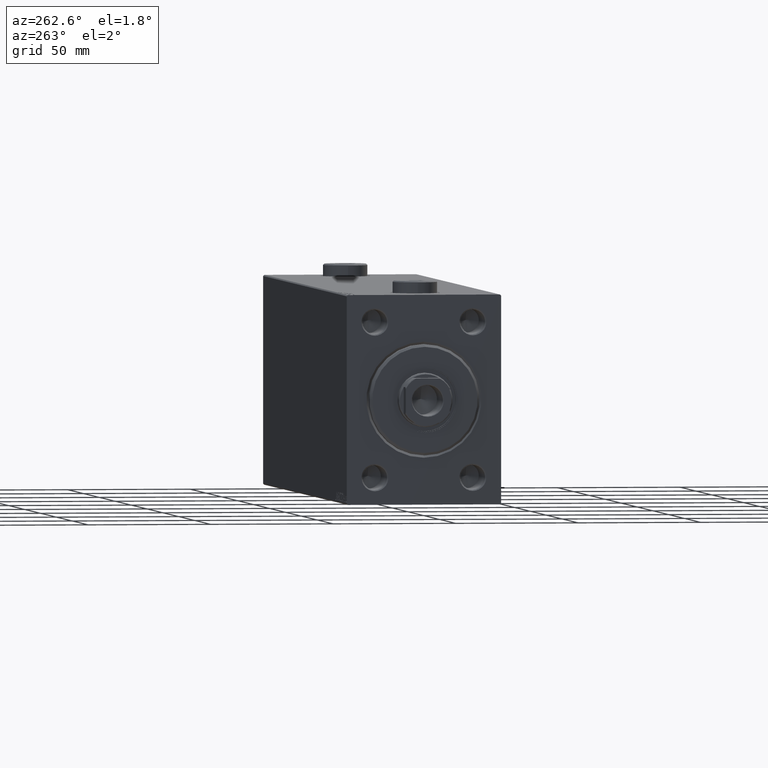
[diagram: clean part render]
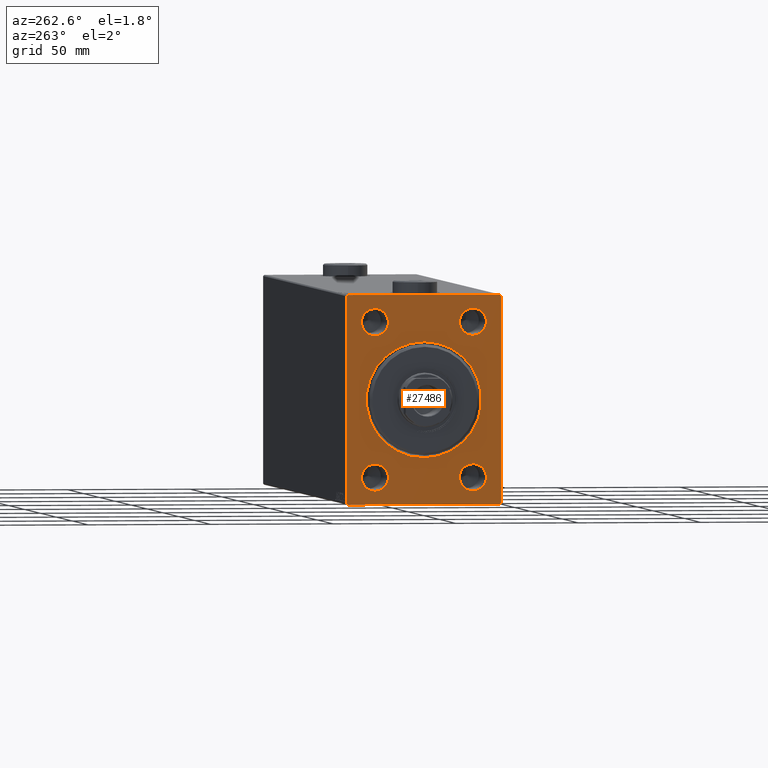
[diagram: same view with one face highlighted and labeled with its STEP entity id]
A machine part, auxiliary view. The second image highlights one B-rep face of the part: STEP entity #27486.
In plain terms, the highlighted planar face has unit normal (1, 0, 0).
Its self-contained STEP definition (entity closure, byte-faithful):
#648 = EDGE_CURVE ( 'NONE', #2320, #26723, #38391, .T. ) ;
#929 = CARTESIAN_POINT ( 'NONE',  ( 0.000000000000000000, -30.99999999999994316, 42.49999999999998579 ) ) ;
#1186 = CARTESIAN_POINT ( 'NONE',  ( 0.000000000000000000, -31.50000000000000000, 41.99999999999990763 ) ) ;
#1431 = VERTEX_POINT ( 'NONE', #42584 ) ;
#1801 = EDGE_CURVE ( 'NONE', #34371, #3617, #2379, .T. ) ;
#2040 = AXIS2_PLACEMENT_3D ( 'NONE', #24608, #38646, #7094 ) ;
#2047 = ORIENTED_EDGE ( 'NONE', *, *, #19656, .F. ) ;
#2219 = EDGE_CURVE ( 'NONE', #17587, #16890, #34788, .T. ) ;
#2229 = DIRECTION ( 'NONE',  ( 1.000000000000000000, 0.000000000000000000, 0.000000000000000000 ) ) ;
#2320 = VERTEX_POINT ( 'NONE', #10133 ) ;
#2379 = CIRCLE ( 'NONE', #35481, 5.499999999999976907 ) ;
#2711 = DIRECTION ( 'NONE',  ( 0.000000000000000000, 0.000000000000000000, -1.000000000000000000 ) ) ;
#2821 = FACE_BOUND ( 'NONE', #23811, .T. ) ;
#2835 = LINE ( 'NONE', #16897, #22078 ) ;
#2920 = CARTESIAN_POINT ( 'NONE',  ( 0.000000000000000000, 19.99999999999999645, -31.50000000000000000 ) ) ;
#3065 = ORIENTED_EDGE ( 'NONE', *, *, #1801, .T. ) ;
#3284 = CIRCLE ( 'NONE', #36382, 23.50000000000004619 ) ;
#3617 = VERTEX_POINT ( 'NONE', #29626 ) ;
#3770 = DIRECTION ( 'NONE',  ( 0.000000000000000000, -1.632680918566406547E-16, 1.000000000000000000 ) ) ;
#4809 = EDGE_LOOP ( 'NONE', ( #32560, #27031 ) ) ;
#5564 = EDGE_CURVE ( 'NONE', #13637, #32768, #37785, .T. ) ;
#5765 = ORIENTED_EDGE ( 'NONE', *, *, #22519, .T. ) ;
#5835 = CARTESIAN_POINT ( 'NONE',  ( 0.000000000000000000, 19.99999999999999645, -26.00000000000002132 ) ) ;
#6058 = CARTESIAN_POINT ( 'NONE',  ( 0.000000000000000000, 0.000000000000000000, 0.000000000000000000 ) ) ;
#6133 = LINE ( 'NONE', #37232, #7347 ) ;
#6438 = DIRECTION ( 'NONE',  ( 1.000000000000000000, 0.000000000000000000, 0.000000000000000000 ) ) ;
#6536 = CARTESIAN_POINT ( 'NONE',  ( 0.000000000000000000, -31.50000000000000000, -41.99999999999997158 ) ) ;
#6665 = VERTEX_POINT ( 'NONE', #17249 ) ;
#6967 = DIRECTION ( 'NONE',  ( 0.000000000000000000, 0.000000000000000000, -1.000000000000000000 ) ) ;
#7094 = DIRECTION ( 'NONE',  ( 0.000000000000000000, 0.000000000000000000, -1.000000000000000000 ) ) ;
#7347 = VECTOR ( 'NONE', #44386, 1000.000000000000000 ) ;
#7390 = EDGE_CURVE ( 'NONE', #6665, #26453, #3284, .T. ) ;
#8122 = CARTESIAN_POINT ( 'NONE',  ( 0.000000000000000000, 30.99999999999998579, -42.50000000000000711 ) ) ;
#8381 = ORIENTED_EDGE ( 'NONE', *, *, #30700, .T. ) ;
#8404 = AXIS2_PLACEMENT_3D ( 'NONE', #30627, #6438, #38226 ) ;
#8878 = EDGE_CURVE ( 'NONE', #13487, #8931, #44778, .T. ) ;
#8931 = VERTEX_POINT ( 'NONE', #6536 ) ;
#8977 = VECTOR ( 'NONE', #34705, 1000.000000000000000 ) ;
#9001 = AXIS2_PLACEMENT_3D ( 'NONE', #17718, #24641, #13575 ) ;
#9233 = VECTOR ( 'NONE', #2711, 1000.000000000000000 ) ;
#9287 = FACE_BOUND ( 'NONE', #20520, .T. ) ;
#9901 = DIRECTION ( 'NONE',  ( 0.000000000000000000, 0.000000000000000000, -1.000000000000000000 ) ) ;
#10128 = AXIS2_PLACEMENT_3D ( 'NONE', #2920, #2229, #16752 ) ;
#10133 = CARTESIAN_POINT ( 'NONE',  ( 0.000000000000000000, 30.99999999999991473, 42.49999999999999289 ) ) ;
#10317 = EDGE_CURVE ( 'NONE', #26453, #6665, #42260, .T. ) ;
#10375 = ORIENTED_EDGE ( 'NONE', *, *, #35264, .T. ) ;
#10630 = EDGE_CURVE ( 'NONE', #13637, #1431, #17615, .T. ) ;
#10890 = EDGE_LOOP ( 'NONE', ( #3065, #33716 ) ) ;
#11088 = ORIENTED_EDGE ( 'NONE', *, *, #39002, .T. ) ;
#11696 = AXIS2_PLACEMENT_3D ( 'NONE', #26417, #19269, #12115 ) ;
#11945 = CARTESIAN_POINT ( 'NONE',  ( 0.000000000000000000, -30.99999999999997158, -42.50000000000000711 ) ) ;
#12115 = DIRECTION ( 'NONE',  ( 0.000000000000000000, 0.000000000000000000, -1.000000000000000000 ) ) ;
#13076 = AXIS2_PLACEMENT_3D ( 'NONE', #6058, #20584, #30933 ) ;
#13487 = VERTEX_POINT ( 'NONE', #11945 ) ;
#13546 = CARTESIAN_POINT ( 'NONE',  ( 0.000000000000000000, 31.50000000000001421, -41.99999999999997868 ) ) ;
#13575 = DIRECTION ( 'NONE',  ( 0.000000000000000000, 0.000000000000000000, -1.000000000000000000 ) ) ;
#13621 = EDGE_CURVE ( 'NONE', #25175, #8931, #34272, .T. ) ;
#13637 = VERTEX_POINT ( 'NONE', #13546 ) ;
#14547 = VECTOR ( 'NONE', #45110, 1000.000000000000000 ) ;
#16010 = CIRCLE ( 'NONE', #10128, 5.499999999999976907 ) ;
#16036 = CIRCLE ( 'NONE', #2040, 5.499999999999976907 ) ;
#16427 = FACE_BOUND ( 'NONE', #39358, .T. ) ;
#16464 = VECTOR ( 'NONE', #33883, 1000.000000000000114 ) ;
#16657 = ORIENTED_EDGE ( 'NONE', *, *, #8878, .T. ) ;
#16752 = DIRECTION ( 'NONE',  ( 0.000000000000000000, 0.000000000000000000, -1.000000000000000000 ) ) ;
#16890 = VERTEX_POINT ( 'NONE', #27759 ) ;
#16897 = CARTESIAN_POINT ( 'NONE',  ( 0.000000000000000000, -31.50000000000000000, 41.99999999999990763 ) ) ;
#16912 = AXIS2_PLACEMENT_3D ( 'NONE', #26818, #18998, #40856 ) ;
#17001 = LINE ( 'NONE', #31051, #14547 ) ;
#17104 = CARTESIAN_POINT ( 'NONE',  ( 0.000000000000000000, -20.00000000000000355, 31.50000000000000000 ) ) ;
#17249 = CARTESIAN_POINT ( 'NONE',  ( 0.000000000000000000, 0.000000000000000000, 23.50000000000004619 ) ) ;
#17348 = CARTESIAN_POINT ( 'NONE',  ( 0.000000000000000000, -20.00000000000000355, -31.50000000000000000 ) ) ;
#17587 = VERTEX_POINT ( 'NONE', #19089 ) ;
#17615 = LINE ( 'NONE', #31661, #36379 ) ;
#17718 = CARTESIAN_POINT ( 'NONE',  ( 0.000000000000000000, -20.00000000000000355, 31.50000000000000000 ) ) ;
#18460 = DIRECTION ( 'NONE',  ( 0.000000000000000000, 0.000000000000000000, -1.000000000000000000 ) ) ;
#18638 = CARTESIAN_POINT ( 'NONE',  ( 0.000000000000000000, 0.000000000000000000, 0.000000000000000000 ) ) ;
#18998 = DIRECTION ( 'NONE',  ( 1.000000000000000000, 0.000000000000000000, 0.000000000000000000 ) ) ;
#19089 = CARTESIAN_POINT ( 'NONE',  ( 0.000000000000000000, -20.00000000000000355, -36.99999999999997868 ) ) ;
#19269 = DIRECTION ( 'NONE',  ( 1.000000000000000000, 0.000000000000000000, 0.000000000000000000 ) ) ;
#19656 = EDGE_CURVE ( 'NONE', #13487, #32768, #17001, .T. ) ;
#19717 = EDGE_CURVE ( 'NONE', #30789, #34842, #16036, .T. ) ;
#19971 = ORIENTED_EDGE ( 'NONE', *, *, #5564, .T. ) ;
#20520 = EDGE_LOOP ( 'NONE', ( #5765, #10375 ) ) ;
#20584 = DIRECTION ( 'NONE',  ( 1.000000000000000000, 0.000000000000000000, 0.000000000000000000 ) ) ;
#20971 = CARTESIAN_POINT ( 'NONE',  ( 0.000000000000000000, -20.00000000000000355, -31.50000000000000000 ) ) ;
#21288 = CIRCLE ( 'NONE', #11696, 5.499999999999976907 ) ;
#21941 = EDGE_LOOP ( 'NONE', ( #25855, #27427, #45318, #24574, #44917, #19971, #2047, #16657 ) ) ;
#21947 = EDGE_CURVE ( 'NONE', #25175, #26723, #2835, .T. ) ;
#21988 = ORIENTED_EDGE ( 'NONE', *, *, #19717, .T. ) ;
#22027 = CARTESIAN_POINT ( 'NONE',  ( 0.000000000000000000, 19.99999999999999645, -36.99999999999997868 ) ) ;
#22078 = VECTOR ( 'NONE', #32070, 1000.000000000000000 ) ;
#22186 = VERTEX_POINT ( 'NONE', #28966 ) ;
#22307 = EDGE_CURVE ( 'NONE', #2320, #1431, #6133, .T. ) ;
#22519 = EDGE_CURVE ( 'NONE', #31680, #22186, #36754, .T. ) ;
#22556 = DIRECTION ( 'NONE',  ( 1.000000000000000000, 0.000000000000000000, 0.000000000000000000 ) ) ;
#23805 = FACE_BOUND ( 'NONE', #10890, .T. ) ;
#23811 = EDGE_LOOP ( 'NONE', ( #8381, #21988 ) ) ;
#24158 = CARTESIAN_POINT ( 'NONE',  ( 0.000000000000000000, -31.50000000000000000, 42.49999999999998579 ) ) ;
#24574 = ORIENTED_EDGE ( 'NONE', *, *, #22307, .T. ) ;
#24608 = CARTESIAN_POINT ( 'NONE',  ( 0.000000000000000000, 19.99999999999999645, -31.50000000000000000 ) ) ;
#24641 = DIRECTION ( 'NONE',  ( 1.000000000000000000, 0.000000000000000000, 0.000000000000000000 ) ) ;
#25175 = VERTEX_POINT ( 'NONE', #1186 ) ;
#25778 = DIRECTION ( 'NONE',  ( 0.000000000000000000, 0.000000000000000000, -1.000000000000000000 ) ) ;
#25855 = ORIENTED_EDGE ( 'NONE', *, *, #13621, .F. ) ;
#26417 = CARTESIAN_POINT ( 'NONE',  ( 0.000000000000000000, 19.99999999999999645, 31.50000000000000000 ) ) ;
#26453 = VERTEX_POINT ( 'NONE', #29785 ) ;
#26723 = VERTEX_POINT ( 'NONE', #929 ) ;
#26818 = CARTESIAN_POINT ( 'NONE',  ( 0.000000000000000000, 19.99999999999999645, 31.50000000000000000 ) ) ;
#27031 = ORIENTED_EDGE ( 'NONE', *, *, #10317, .T. ) ;
#27271 = DIRECTION ( 'NONE',  ( -0.000000000000000000, -0.7071067811865426878, 0.7071067811865524577 ) ) ;
#27427 = ORIENTED_EDGE ( 'NONE', *, *, #21947, .T. ) ;
#27486 = ADVANCED_FACE ( 'NONE', ( #31394, #16427, #23805, #9287, #2821, #34843 ), #44990, .F. ) ;
#27759 = CARTESIAN_POINT ( 'NONE',  ( 0.000000000000000000, -20.00000000000000355, -26.00000000000002132 ) ) ;
#27826 = CARTESIAN_POINT ( 'NONE',  ( 0.000000000000000000, -20.00000000000000355, 36.99999999999997868 ) ) ;
#28373 = DIRECTION ( 'NONE',  ( 1.000000000000000000, 0.000000000000000000, 0.000000000000000000 ) ) ;
#28966 = CARTESIAN_POINT ( 'NONE',  ( 0.000000000000000000, 19.99999999999999645, 26.00000000000002132 ) ) ;
#29626 = CARTESIAN_POINT ( 'NONE',  ( 0.000000000000000000, -20.00000000000000355, 26.00000000000002132 ) ) ;
#29785 = CARTESIAN_POINT ( 'NONE',  ( 0.000000000000000000, 2.877919977996285448E-15, -23.50000000000004619 ) ) ;
#30181 = AXIS2_PLACEMENT_3D ( 'NONE', #17348, #31398, #18460 ) ;
#30560 = CARTESIAN_POINT ( 'NONE',  ( 0.000000000000000000, 31.50000000000000000, 42.49999999999999289 ) ) ;
#30627 = CARTESIAN_POINT ( 'NONE',  ( 0.000000000000000000, 0.000000000000000000, 0.000000000000000000 ) ) ;
#30700 = EDGE_CURVE ( 'NONE', #34842, #30789, #16010, .T. ) ;
#30789 = VERTEX_POINT ( 'NONE', #22027 ) ;
#30933 = DIRECTION ( 'NONE',  ( 0.000000000000000000, 0.000000000000000000, -1.000000000000000000 ) ) ;
#30955 = CARTESIAN_POINT ( 'NONE',  ( 0.000000000000000000, -30.99999999999997158, -42.50000000000000711 ) ) ;
#31051 = CARTESIAN_POINT ( 'NONE',  ( 0.000000000000000000, -31.50000000000000000, -42.50000000000000711 ) ) ;
#31394 = FACE_BOUND ( 'NONE', #4809, .T. ) ;
#31398 = DIRECTION ( 'NONE',  ( 1.000000000000000000, 0.000000000000000000, 0.000000000000000000 ) ) ;
#31661 = CARTESIAN_POINT ( 'NONE',  ( 0.000000000000000000, 31.50000000000001421, -42.50000000000000711 ) ) ;
#31680 = VERTEX_POINT ( 'NONE', #43232 ) ;
#32070 = DIRECTION ( 'NONE',  ( -0.000000000000000000, 0.7071067811865279218, 0.7071067811865671127 ) ) ;
#32560 = ORIENTED_EDGE ( 'NONE', *, *, #7390, .T. ) ;
#32768 = VERTEX_POINT ( 'NONE', #8122 ) ;
#33716 = ORIENTED_EDGE ( 'NONE', *, *, #43105, .T. ) ;
#33883 = DIRECTION ( 'NONE',  ( 0.000000000000000000, -0.7071067811865474617, -0.7071067811865474617 ) ) ;
#34272 = LINE ( 'NONE', #24158, #9233 ) ;
#34337 = CARTESIAN_POINT ( 'NONE',  ( 0.000000000000000000, 31.50000000000001421, -41.99999999999997868 ) ) ;
#34371 = VERTEX_POINT ( 'NONE', #27826 ) ;
#34705 = DIRECTION ( 'NONE',  ( 0.000000000000000000, -1.000000000000000000, -1.101411730778925171E-16 ) ) ;
#34788 = CIRCLE ( 'NONE', #37742, 5.499999999999976907 ) ;
#34842 = VERTEX_POINT ( 'NONE', #5835 ) ;
#34843 = FACE_OUTER_BOUND ( 'NONE', #21941, .T. ) ;
#35264 = EDGE_CURVE ( 'NONE', #22186, #31680, #21288, .T. ) ;
#35481 = AXIS2_PLACEMENT_3D ( 'NONE', #17104, #28373, #6967 ) ;
#36379 = VECTOR ( 'NONE', #3770, 1000.000000000000000 ) ;
#36382 = AXIS2_PLACEMENT_3D ( 'NONE', #18638, #22556, #25778 ) ;
#36754 = CIRCLE ( 'NONE', #16912, 5.499999999999976907 ) ;
#36937 = CIRCLE ( 'NONE', #9001, 5.499999999999976907 ) ;
#37232 = CARTESIAN_POINT ( 'NONE',  ( 0.000000000000000000, 30.99999999999991473, 42.49999999999999289 ) ) ;
#37742 = AXIS2_PLACEMENT_3D ( 'NONE', #20971, #42149, #9901 ) ;
#37785 = LINE ( 'NONE', #34337, #16464 ) ;
#38226 = DIRECTION ( 'NONE',  ( 0.000000000000000000, 0.000000000000000000, -1.000000000000000000 ) ) ;
#38391 = LINE ( 'NONE', #30560, #8977 ) ;
#38646 = DIRECTION ( 'NONE',  ( 1.000000000000000000, 0.000000000000000000, 0.000000000000000000 ) ) ;
#39002 = EDGE_CURVE ( 'NONE', #16890, #17587, #42678, .T. ) ;
#39358 = EDGE_LOOP ( 'NONE', ( #11088, #39411 ) ) ;
#39411 = ORIENTED_EDGE ( 'NONE', *, *, #2219, .T. ) ;
#40832 = VECTOR ( 'NONE', #27271, 1000.000000000000000 ) ;
#40856 = DIRECTION ( 'NONE',  ( 0.000000000000000000, 0.000000000000000000, -1.000000000000000000 ) ) ;
#42149 = DIRECTION ( 'NONE',  ( 1.000000000000000000, 0.000000000000000000, 0.000000000000000000 ) ) ;
#42260 = CIRCLE ( 'NONE', #8404, 23.50000000000004619 ) ;
#42584 = CARTESIAN_POINT ( 'NONE',  ( 0.000000000000000000, 31.50000000000000000, 41.99999999999994316 ) ) ;
#42678 = CIRCLE ( 'NONE', #30181, 5.499999999999976907 ) ;
#43105 = EDGE_CURVE ( 'NONE', #3617, #34371, #36937, .T. ) ;
#43232 = CARTESIAN_POINT ( 'NONE',  ( 0.000000000000000000, 19.99999999999999645, 36.99999999999997868 ) ) ;
#44386 = DIRECTION ( 'NONE',  ( -0.000000000000000000, 0.7071067811865671127, -0.7071067811865279218 ) ) ;
#44778 = LINE ( 'NONE', #30955, #40832 ) ;
#44917 = ORIENTED_EDGE ( 'NONE', *, *, #10630, .F. ) ;
#44990 = PLANE ( 'NONE',  #13076 ) ;
#45110 = DIRECTION ( 'NONE',  ( 0.000000000000000000, 1.000000000000000000, 0.000000000000000000 ) ) ;
#45318 = ORIENTED_EDGE ( 'NONE', *, *, #648, .F. ) ;